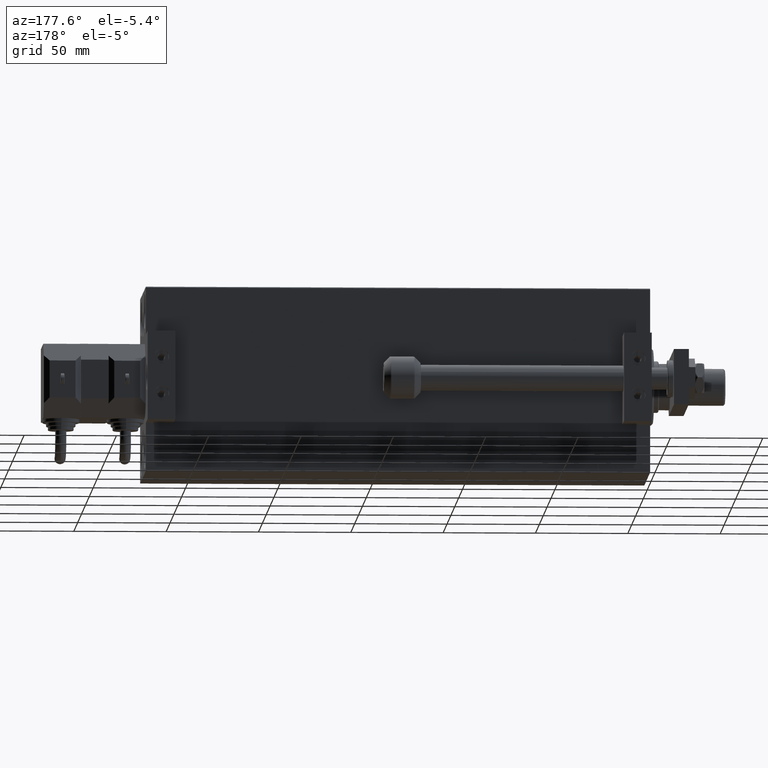
[diagram: clean part render]
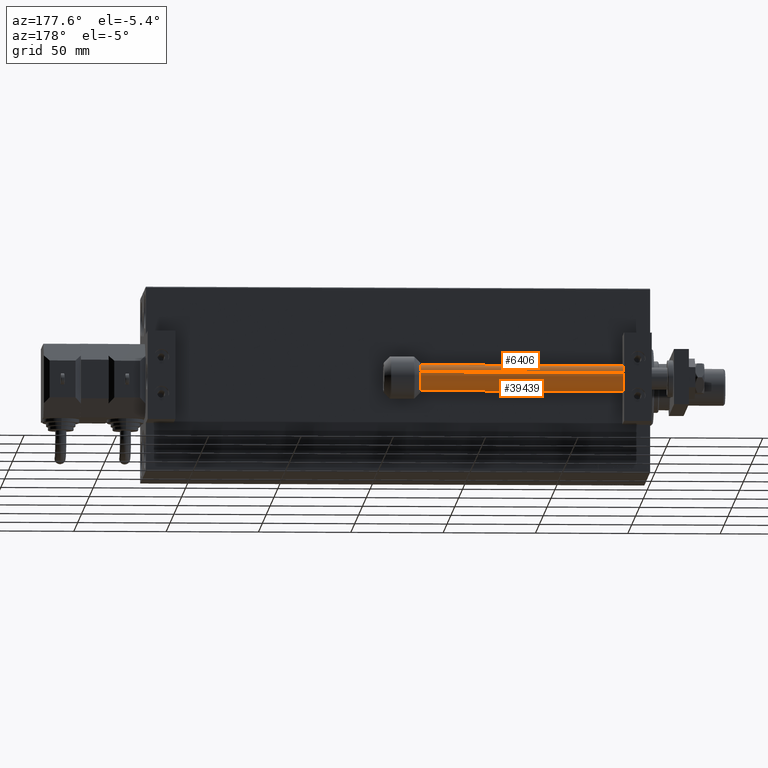
[diagram: same view with one multi-face feature highlighted, each face labeled with its STEP entity id]
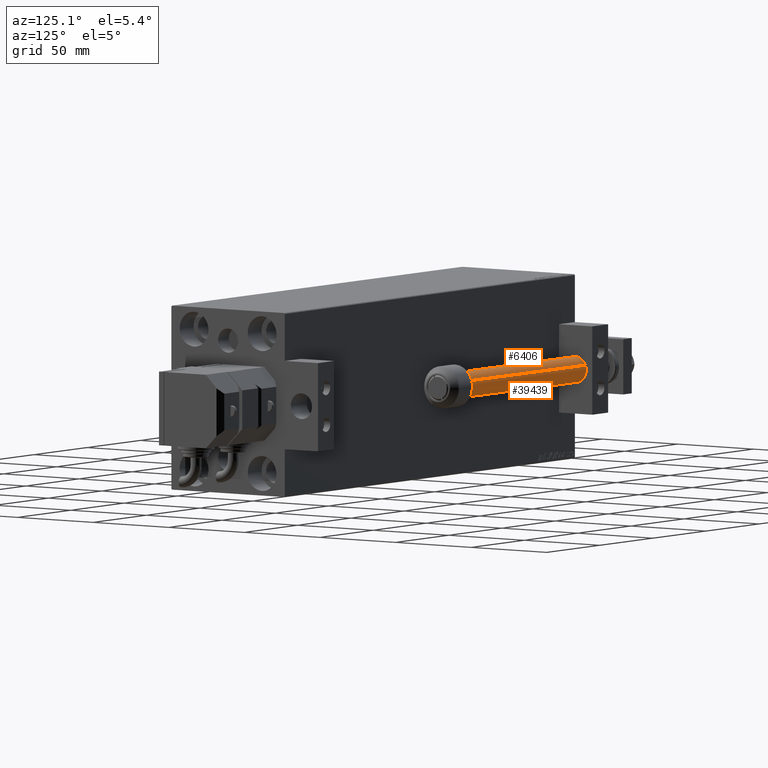
[diagram: same view with one multi-face feature highlighted, each face labeled with its STEP entity id]
A machine part, auxiliary view. The highlighted faces form ONE feature: a constant-radius fillet chain: 2 tangent blend faces with common blend radius 7 mm. The faces share edges in the B-rep.
A second angle (auxiliary view) of the same feature is appended — it is thin or edge-on in the first view.
Their STEP definitions:
[1] entity #39439 (Cylinder):
#209 = DIRECTION ( 'NONE',  ( 0.000000000000000000, 0.000000000000000000, -1.000000000000000000 ) ) ;
#359 = ORIENTED_EDGE ( 'NONE', *, *, #13989, .F. ) ;
#429 = CIRCLE ( 'NONE', #35031, 7.000000000000000000 ) ;
#1003 = VECTOR ( 'NONE', #38918, 1000.000000000000000 ) ;
#1682 = CARTESIAN_POINT ( 'NONE',  ( 7.000000000000000000, 8.572527594031473190E-16, 142.0000000000000000 ) ) ;
#2798 = EDGE_CURVE ( 'NONE', #7927, #12330, #6790, .T. ) ;
#4343 = EDGE_CURVE ( 'NONE', #46364, #29670, #429, .T. ) ;
#5442 = CARTESIAN_POINT ( 'NONE',  ( 0.000000000000000000, 0.000000000000000000, 142.0000000000000000 ) ) ;
#6058 = CYLINDRICAL_SURFACE ( 'NONE', #16913, 7.000000000000000000 ) ;
#6084 = DIRECTION ( 'NONE',  ( -0.000000000000000000, -0.000000000000000000, -1.000000000000000000 ) ) ;
#6555 = DIRECTION ( 'NONE',  ( -0.000000000000000000, -0.000000000000000000, -1.000000000000000000 ) ) ;
#6790 = CIRCLE ( 'NONE', #7615, 7.000000000000000000 ) ;
#7509 = VERTEX_POINT ( 'NONE', #28344 ) ;
#7517 = CARTESIAN_POINT ( 'NONE',  ( 0.000000000000000000, 0.000000000000000000, 142.0000000000000000 ) ) ;
#7615 = AXIS2_PLACEMENT_3D ( 'NONE', #5442, #40935, #28604 ) ;
#7630 = DIRECTION ( 'NONE',  ( 1.000000000000000000, 0.000000000000000000, 0.000000000000000000 ) ) ;
#7927 = VERTEX_POINT ( 'NONE', #33732 ) ;
#11697 = CARTESIAN_POINT ( 'NONE',  ( -7.000000000000000000, 0.000000000000000000, 142.0000000000000000 ) ) ;
#12330 = VERTEX_POINT ( 'NONE', #1682 ) ;
#12588 = ORIENTED_EDGE ( 'NONE', *, *, #2798, .T. ) ;
#13733 = EDGE_CURVE ( 'NONE', #7509, #7927, #19112, .T. ) ;
#13989 = EDGE_CURVE ( 'NONE', #21723, #29670, #14149, .T. ) ;
#14149 = LINE ( 'NONE', #25236, #16721 ) ;
#15461 = CIRCLE ( 'NONE', #39599, 7.000000000000000000 ) ;
#16721 = VECTOR ( 'NONE', #6084, 1000.000000000000000 ) ;
#16913 = AXIS2_PLACEMENT_3D ( 'NONE', #32763, #6555, #36793 ) ;
#19112 = CIRCLE ( 'NONE', #40028, 7.000000000000000000 ) ;
#20269 = CARTESIAN_POINT ( 'NONE',  ( 7.000000000000000000, 8.572527594031473190E-16, 143.0000000000000000 ) ) ;
#20863 = DIRECTION ( 'NONE',  ( -0.000000000000000000, -0.000000000000000000, 1.000000000000000000 ) ) ;
#21723 = VERTEX_POINT ( 'NONE', #11697 ) ;
#22766 = DIRECTION ( 'NONE',  ( 0.000000000000000000, 0.000000000000000000, -1.000000000000000000 ) ) ;
#24483 = ORIENTED_EDGE ( 'NONE', *, *, #43949, .T. ) ;
#25236 = CARTESIAN_POINT ( 'NONE',  ( -7.000000000000000000, 0.000000000000000000, 143.0000000000000000 ) ) ;
#25708 = ORIENTED_EDGE ( 'NONE', *, *, #45758, .T. ) ;
#28344 = CARTESIAN_POINT ( 'NONE',  ( -0.4999999999999992784, 6.982120021884471228, 142.0000000000000000 ) ) ;
#28604 = DIRECTION ( 'NONE',  ( 1.000000000000000000, -8.881784197001252323E-16, 0.000000000000000000 ) ) ;
#29670 = VERTEX_POINT ( 'NONE', #39059 ) ;
#30299 = EDGE_LOOP ( 'NONE', ( #12588, #25708, #31602, #359, #24483, #30495 ) ) ;
#30495 = ORIENTED_EDGE ( 'NONE', *, *, #13733, .T. ) ;
#31602 = ORIENTED_EDGE ( 'NONE', *, *, #4343, .T. ) ;
#32202 = CARTESIAN_POINT ( 'NONE',  ( 0.000000000000000000, 0.000000000000000000, 2.000000000000029310 ) ) ;
#32763 = CARTESIAN_POINT ( 'NONE',  ( 0.000000000000000000, 0.000000000000000000, 143.0000000000000000 ) ) ;
#33258 = FACE_OUTER_BOUND ( 'NONE', #30299, .T. ) ;
#33732 = CARTESIAN_POINT ( 'NONE',  ( 0.5000000000000000000, 6.982120021884470340, 142.0000000000000000 ) ) ;
#34648 = LINE ( 'NONE', #20269, #1003 ) ;
#35031 = AXIS2_PLACEMENT_3D ( 'NONE', #32202, #20863, #47579 ) ;
#36793 = DIRECTION ( 'NONE',  ( -1.000000000000000000, 0.000000000000000000, 0.000000000000000000 ) ) ;
#38918 = DIRECTION ( 'NONE',  ( -0.000000000000000000, -0.000000000000000000, -1.000000000000000000 ) ) ;
#39059 = CARTESIAN_POINT ( 'NONE',  ( -7.000000000000000000, 0.000000000000000000, 2.000000000000029310 ) ) ;
#39439 = ADVANCED_FACE ( 'NONE', ( #33258 ), #6058, .T. ) ;
#39599 = AXIS2_PLACEMENT_3D ( 'NONE', #7517, #209, #46313 ) ;
#40028 = AXIS2_PLACEMENT_3D ( 'NONE', #46180, #22766, #7630 ) ;
#40935 = DIRECTION ( 'NONE',  ( 0.000000000000000000, 0.000000000000000000, -1.000000000000000000 ) ) ;
#42701 = CARTESIAN_POINT ( 'NONE',  ( 7.000000000000000000, 8.572527594031473190E-16, 2.000000000000029310 ) ) ;
#43949 = EDGE_CURVE ( 'NONE', #21723, #7509, #15461, .T. ) ;
#45758 = EDGE_CURVE ( 'NONE', #12330, #46364, #34648, .T. ) ;
#46180 = CARTESIAN_POINT ( 'NONE',  ( 0.000000000000000000, 0.000000000000000000, 142.0000000000000000 ) ) ;
#46313 = DIRECTION ( 'NONE',  ( 1.000000000000000000, 0.000000000000000000, 0.000000000000000000 ) ) ;
#46364 = VERTEX_POINT ( 'NONE', #42701 ) ;
#47579 = DIRECTION ( 'NONE',  ( 1.000000000000000000, 0.000000000000000000, 0.000000000000000000 ) ) ;
[2] entity #6406 (Cylinder):
#291 = DIRECTION ( 'NONE',  ( 0.000000000000000000, 0.000000000000000000, -1.000000000000000000 ) ) ;
#1003 = VECTOR ( 'NONE', #38918, 1000.000000000000000 ) ;
#1641 = EDGE_LOOP ( 'NONE', ( #24113, #44618, #16268, #46863, #11777, #30488 ) ) ;
#1682 = CARTESIAN_POINT ( 'NONE',  ( 7.000000000000000000, 8.572527594031473190E-16, 142.0000000000000000 ) ) ;
#2240 = EDGE_CURVE ( 'NONE', #12330, #4706, #35780, .T. ) ;
#2411 = CARTESIAN_POINT ( 'NONE',  ( 0.000000000000000000, 0.000000000000000000, 143.0000000000000000 ) ) ;
#4706 = VERTEX_POINT ( 'NONE', #39700 ) ;
#6084 = DIRECTION ( 'NONE',  ( -0.000000000000000000, -0.000000000000000000, -1.000000000000000000 ) ) ;
#6406 = ADVANCED_FACE ( 'NONE', ( #6436 ), #18271, .T. ) ;
#6436 = FACE_OUTER_BOUND ( 'NONE', #1641, .T. ) ;
#8012 = AXIS2_PLACEMENT_3D ( 'NONE', #38085, #291, #31022 ) ;
#9979 = CARTESIAN_POINT ( 'NONE',  ( 0.000000000000000000, 0.000000000000000000, 142.0000000000000000 ) ) ;
#11697 = CARTESIAN_POINT ( 'NONE',  ( -7.000000000000000000, 0.000000000000000000, 142.0000000000000000 ) ) ;
#11777 = ORIENTED_EDGE ( 'NONE', *, *, #13989, .T. ) ;
#12330 = VERTEX_POINT ( 'NONE', #1682 ) ;
#13634 = AXIS2_PLACEMENT_3D ( 'NONE', #9979, #48531, #22059 ) ;
#13989 = EDGE_CURVE ( 'NONE', #21723, #29670, #14149, .T. ) ;
#14076 = AXIS2_PLACEMENT_3D ( 'NONE', #39639, #47702, #16713 ) ;
#14149 = LINE ( 'NONE', #25236, #16721 ) ;
#16268 = ORIENTED_EDGE ( 'NONE', *, *, #36928, .T. ) ;
#16713 = DIRECTION ( 'NONE',  ( 1.000000000000000000, 0.000000000000000000, 0.000000000000000000 ) ) ;
#16721 = VECTOR ( 'NONE', #6084, 1000.000000000000000 ) ;
#17648 = DIRECTION ( 'NONE',  ( -0.000000000000000000, -0.000000000000000000, 1.000000000000000000 ) ) ;
#18172 = EDGE_CURVE ( 'NONE', #20649, #21723, #24091, .T. ) ;
#18271 = CYLINDRICAL_SURFACE ( 'NONE', #23044, 7.000000000000000000 ) ;
#18442 = EDGE_CURVE ( 'NONE', #29670, #46364, #24921, .T. ) ;
#20269 = CARTESIAN_POINT ( 'NONE',  ( 7.000000000000000000, 8.572527594031473190E-16, 143.0000000000000000 ) ) ;
#20649 = VERTEX_POINT ( 'NONE', #31526 ) ;
#20934 = DIRECTION ( 'NONE',  ( 1.000000000000000000, 0.000000000000000000, 0.000000000000000000 ) ) ;
#21723 = VERTEX_POINT ( 'NONE', #11697 ) ;
#22049 = DIRECTION ( 'NONE',  ( -0.000000000000000000, -0.000000000000000000, -1.000000000000000000 ) ) ;
#22059 = DIRECTION ( 'NONE',  ( 1.000000000000000000, 0.000000000000000000, 0.000000000000000000 ) ) ;
#23044 = AXIS2_PLACEMENT_3D ( 'NONE', #2411, #22049, #37168 ) ;
#24091 = CIRCLE ( 'NONE', #8012, 7.000000000000000000 ) ;
#24113 = ORIENTED_EDGE ( 'NONE', *, *, #45758, .F. ) ;
#24921 = CIRCLE ( 'NONE', #36959, 7.000000000000000000 ) ;
#25236 = CARTESIAN_POINT ( 'NONE',  ( -7.000000000000000000, 0.000000000000000000, 143.0000000000000000 ) ) ;
#29670 = VERTEX_POINT ( 'NONE', #39059 ) ;
#30488 = ORIENTED_EDGE ( 'NONE', *, *, #18442, .T. ) ;
#31022 = DIRECTION ( 'NONE',  ( 1.000000000000000000, 0.000000000000000000, 0.000000000000000000 ) ) ;
#31526 = CARTESIAN_POINT ( 'NONE',  ( -0.4999999999999975020, -6.982120021884471228, 142.0000000000000000 ) ) ;
#34648 = LINE ( 'NONE', #20269, #1003 ) ;
#35780 = CIRCLE ( 'NONE', #14076, 7.000000000000000000 ) ;
#36928 = EDGE_CURVE ( 'NONE', #4706, #20649, #41798, .T. ) ;
#36959 = AXIS2_PLACEMENT_3D ( 'NONE', #40573, #17648, #20934 ) ;
#37168 = DIRECTION ( 'NONE',  ( -1.000000000000000000, 0.000000000000000000, 0.000000000000000000 ) ) ;
#38085 = CARTESIAN_POINT ( 'NONE',  ( 0.000000000000000000, 0.000000000000000000, 142.0000000000000000 ) ) ;
#38918 = DIRECTION ( 'NONE',  ( -0.000000000000000000, -0.000000000000000000, -1.000000000000000000 ) ) ;
#39059 = CARTESIAN_POINT ( 'NONE',  ( -7.000000000000000000, 0.000000000000000000, 2.000000000000029310 ) ) ;
#39639 = CARTESIAN_POINT ( 'NONE',  ( 0.000000000000000000, 0.000000000000000000, 142.0000000000000000 ) ) ;
#39700 = CARTESIAN_POINT ( 'NONE',  ( 0.5000000000000001110, -6.982120021884471228, 142.0000000000000000 ) ) ;
#40573 = CARTESIAN_POINT ( 'NONE',  ( 0.000000000000000000, 0.000000000000000000, 2.000000000000029310 ) ) ;
#41798 = CIRCLE ( 'NONE', #13634, 7.000000000000000000 ) ;
#42701 = CARTESIAN_POINT ( 'NONE',  ( 7.000000000000000000, 8.572527594031473190E-16, 2.000000000000029310 ) ) ;
#44618 = ORIENTED_EDGE ( 'NONE', *, *, #2240, .T. ) ;
#45758 = EDGE_CURVE ( 'NONE', #12330, #46364, #34648, .T. ) ;
#46364 = VERTEX_POINT ( 'NONE', #42701 ) ;
#46863 = ORIENTED_EDGE ( 'NONE', *, *, #18172, .T. ) ;
#47702 = DIRECTION ( 'NONE',  ( 0.000000000000000000, 0.000000000000000000, -1.000000000000000000 ) ) ;
#48531 = DIRECTION ( 'NONE',  ( 0.000000000000000000, 0.000000000000000000, -1.000000000000000000 ) ) ;